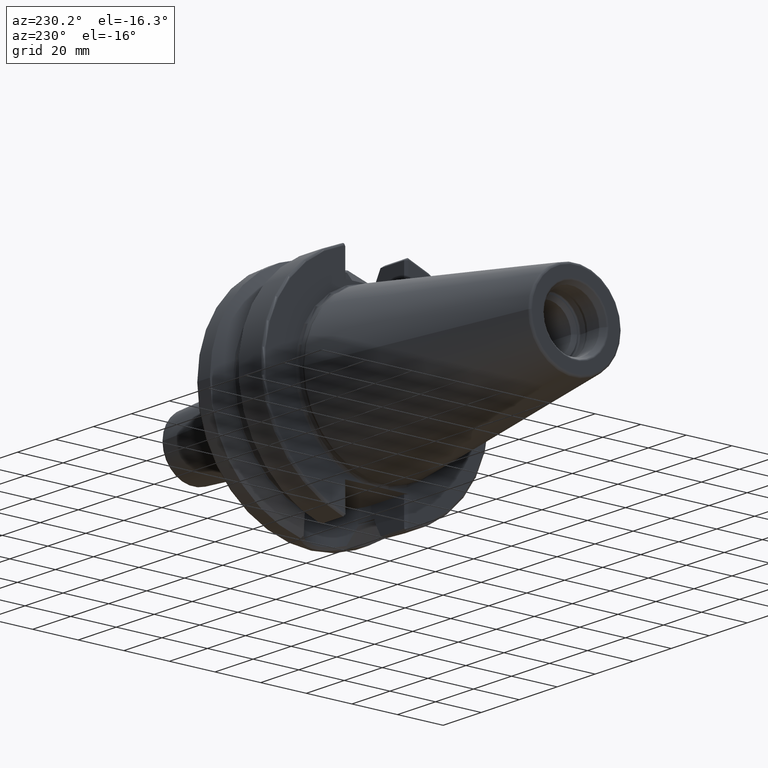
[diagram: clean part render]
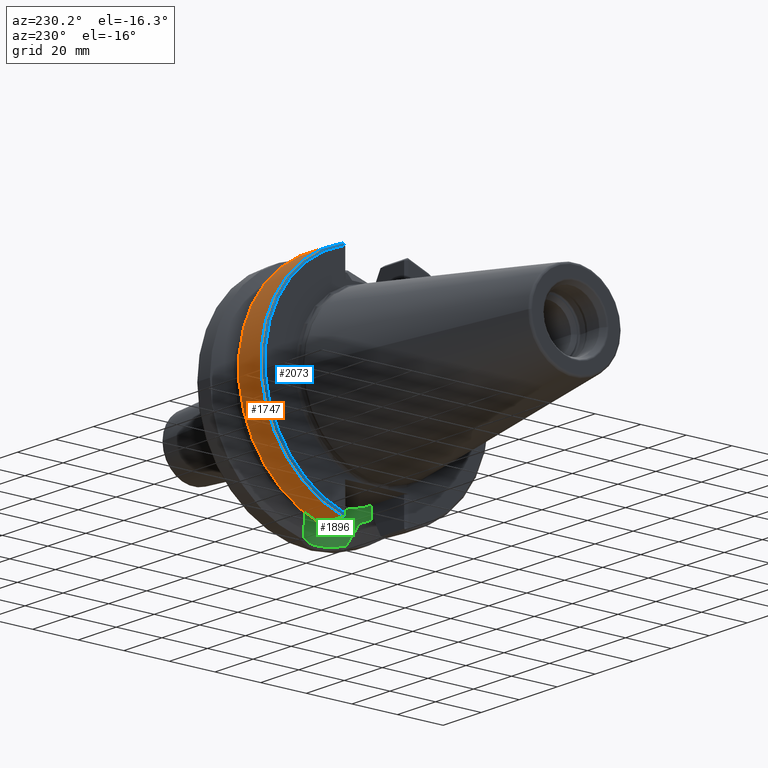
[diagram: same view with three faces highlighted in distinct colors, each labeled with its STEP entity id]
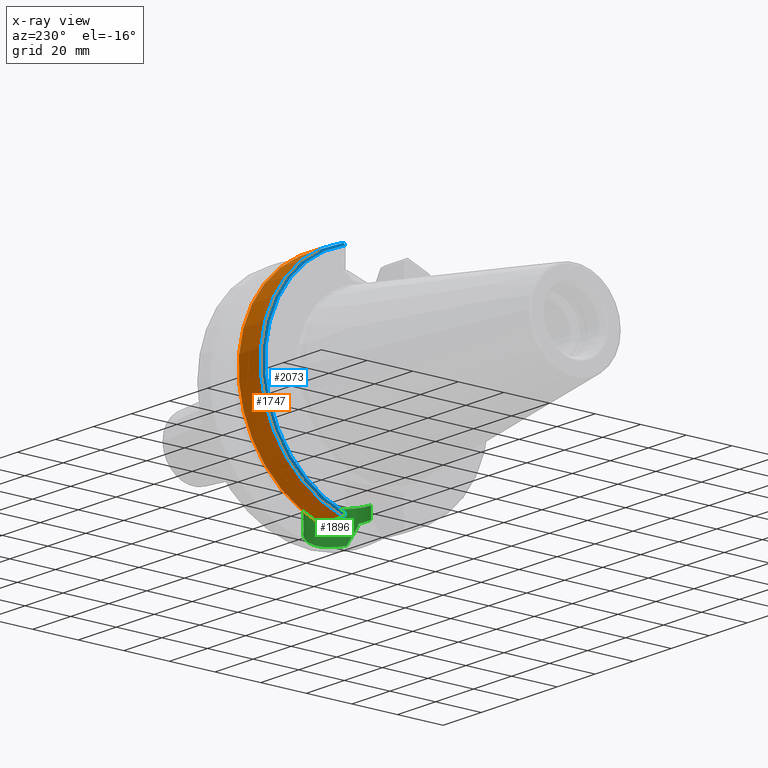
[diagram: x-ray of the same camera — body ghosted, the three highlighted faces saturated]
A machine part, auxiliary view with three faces highlighted in distinct colors.
The next image is the same camera in x-ray (body ghosted, the three faces saturated) — at least one of them is partly hidden behind the body in this view.
Their STEP definitions:

[orange] entity #1747 — the highlighted cylindrical surface (partial cylindrical patch) has radius 49.9875 mm, axis along (1, 0, 0).
#227=CARTESIAN_POINT('',(4.E0,0.E0,0.E0));
#228=DIRECTION('',(-1.E0,0.E0,0.E0));
#229=DIRECTION('',(0.E0,2.837968869610E-1,9.588844179312E-1));
#230=AXIS2_PLACEMENT_3D('',#227,#228,#229);
#232=DIRECTION('',(-1.E0,-7.302338022926E-8,-9.708531933347E-8));
#233=VECTOR('',#232,1.166933176412E1);
#234=CARTESIAN_POINT('',(1.566933176383E1,1.386327333875E1,-4.802665727057E1));
#235=LINE('',#234,#233);
#236=CARTESIAN_POINT('',(1.566933176383E1,0.E0,0.E0));
#237=DIRECTION('',(1.E0,0.E0,0.E0));
#238=DIRECTION('',(0.E0,2.773348004750E-1,-9.607733387462E-1));
#239=AXIS2_PLACEMENT_3D('',#236,#237,#238);
#241=DIRECTION('',(9.999999999989E-1,8.887251737038E-7,-1.189757232592E-6));
#242=VECTOR('',#241,1.166933177277E1);
#243=CARTESIAN_POINT('',(3.999999991073E0,1.418628651613E1,4.793224872501E1));
#244=LINE('',#243,#242);
#571=CARTESIAN_POINT('',(3.999999999701E0,1.386327248661E1,-4.802665840350E1));
#1342=CARTESIAN_POINT('',(1.566933176383E1,1.386327333875E1,-4.802665727057E1));
#1343=CARTESIAN_POINT('',(1.566933176383E1,1.418629688696E1,4.793223484134E1));
#1344=VERTEX_POINT('',#1342);
#1345=VERTEX_POINT('',#1343);
#1357=CARTESIAN_POINT('',(4.E0,1.418631682991E1,4.793222893890E1));
#1359=VERTEX_POINT('',#1357);
#1374=VERTEX_POINT('',#571);
#1733=CARTESIAN_POINT('',(-1.0879E2,0.E0,0.E0));
#1734=DIRECTION('',(1.E0,0.E0,0.E0));
#1735=DIRECTION('',(0.E0,-1.E0,0.E0));
#1736=AXIS2_PLACEMENT_3D('',#1733,#1734,#1735);
#1737=CYLINDRICAL_SURFACE('',#1736,4.99875E1);
#1739=ORIENTED_EDGE('',*,*,#1738,.T.);
#1741=ORIENTED_EDGE('',*,*,#1740,.F.);
#1742=ORIENTED_EDGE('',*,*,#1686,.T.);
#1744=ORIENTED_EDGE('',*,*,#1743,.F.);
#1745=EDGE_LOOP('',(#1739,#1741,#1742,#1744));
#1746=FACE_OUTER_BOUND('',#1745,.F.);
#1747=ADVANCED_FACE('',(#1746),#1737,.T.);
#231=CIRCLE('',#230,4.99875E1);
#240=CIRCLE('',#239,4.99875E1);
#1686=EDGE_CURVE('',#1344,#1345,#240,.T.);
#1738=EDGE_CURVE('',#1359,#1374,#231,.T.);
#1740=EDGE_CURVE('',#1344,#1374,#235,.T.);
#1743=EDGE_CURVE('',#1359,#1345,#244,.T.);

[blue] entity #2073 — the highlighted toroidal blend (fillet) surface has major radius 48.9875 mm and minor (blend) radius 1 mm.
#227=CARTESIAN_POINT('',(4.E0,0.E0,0.E0));
#228=DIRECTION('',(-1.E0,0.E0,0.E0));
#229=DIRECTION('',(0.E0,2.837968869610E-1,9.588844179312E-1));
#230=AXIS2_PLACEMENT_3D('',#227,#228,#229);
#571=CARTESIAN_POINT('',(3.999999999701E0,1.386327248661E1,-4.802665840350E1));
#572=CARTESIAN_POINT('',(3.940459880706E0,1.386328759388E1,-4.802665404266E1));
#573=CARTESIAN_POINT('',(3.818524379244E0,1.386408249541E1,-4.801536526032E1));
#574=CARTESIAN_POINT('',(3.632802361895E0,1.386813157488E1,-4.795971866684E1));
#575=CARTESIAN_POINT('',(3.454761225176E0,1.387449273833E1,-4.786347597167E1));
#576=CARTESIAN_POINT('',(3.294931333912E0,1.388240594639E1,-4.772857875800E1));
#577=CARTESIAN_POINT('',(3.162899754239E0,1.389052093324E1,-4.756045881447E1));
#578=CARTESIAN_POINT('',(3.066796699794E0,1.389728433203E1,-4.736907635249E1));
#579=CARTESIAN_POINT('',(3.011034865800E0,1.390161469890E1,-4.716733990672E1));
#580=CARTESIAN_POINT('',(2.999993172884E0,1.390258355640E1,-4.703686424349E1));
#581=CARTESIAN_POINT('',(2.999993172884E0,1.390249317248E1,-4.697335004621E1));
#583=CARTESIAN_POINT('',(4.E0,1.390251954399E1,4.697334463905E1));
#584=DIRECTION('',(0.E0,9.588842998530E-1,-2.837972859196E-1));
#585=DIRECTION('',(-1.E0,-1.200817223435E-12,-4.057199021190E-12));
#586=AXIS2_PLACEMENT_3D('',#583,#584,#585);
#588=CARTESIAN_POINT('',(3.E0,0.E0,0.E0));
#589=DIRECTION('',(-1.E0,0.E0,0.E0));
#590=DIRECTION('',(0.E0,2.837969049058E-1,9.588844126201E-1));
#591=AXIS2_PLACEMENT_3D('',#588,#589,#590);
#1356=CARTESIAN_POINT('',(3.E0,1.390251954398E1,4.697334463905E1));
#1357=CARTESIAN_POINT('',(4.E0,1.418631682991E1,4.793222893890E1));
#1358=VERTEX_POINT('',#1356);
#1359=VERTEX_POINT('',#1357);
#1370=CARTESIAN_POINT('',(2.999993172884E0,1.390249317248E1,-4.697335004621E1));
#1372=VERTEX_POINT('',#1370);
#1374=VERTEX_POINT('',#571);
#2060=CARTESIAN_POINT('',(4.E0,0.E0,0.E0));
#2061=DIRECTION('',(1.E0,0.E0,0.E0));
#2062=DIRECTION('',(0.E0,-1.E0,0.E0));
#2063=AXIS2_PLACEMENT_3D('',#2060,#2061,#2062);
#2064=TOROIDAL_SURFACE('',#2063,4.89875E1,1.E0);
#2066=ORIENTED_EDGE('',*,*,#2065,.F.);
#2067=ORIENTED_EDGE('',*,*,#1738,.F.);
#2069=ORIENTED_EDGE('',*,*,#2068,.F.);
#2070=ORIENTED_EDGE('',*,*,#1575,.T.);
#2071=EDGE_LOOP('',(#2066,#2067,#2069,#2070));
#2072=FACE_OUTER_BOUND('',#2071,.F.);
#2073=ADVANCED_FACE('',(#2072),#2064,.T.);
#231=CIRCLE('',#230,4.99875E1);
#582=B_SPLINE_CURVE_WITH_KNOTS('',3,(#571,#572,#573,#574,#575,#576,#577,#578,
#579,#580,#581),.UNSPECIFIED.,.F.,.F.,(4,1,1,1,1,1,1,1,4),(0.E0,1.25E-1,2.5E-1,
3.75E-1,5.E-1,6.25E-1,7.5E-1,8.75E-1,1.E0),.UNSPECIFIED.);
#587=CIRCLE('',#586,1.E0);
#592=CIRCLE('',#591,4.89875E1);
#1575=EDGE_CURVE('',#1358,#1372,#592,.T.);
#1738=EDGE_CURVE('',#1359,#1374,#231,.T.);
#2065=EDGE_CURVE('',#1374,#1372,#582,.T.);
#2068=EDGE_CURVE('',#1358,#1359,#587,.T.);

[green] entity #1896 — the highlighted cylindrical surface (partial cylindrical patch) has radius 12.9025 mm, axis along (0, 0, 1).
#182=DIRECTION('',(0.E0,0.E0,-1.E0));
#183=VECTOR('',#182,5.162930007E0);
#184=CARTESIAN_POINT('',(2.13475E1,1.29025E1,-3.52E1));
#185=LINE('',#184,#183);
#354=CARTESIAN_POINT('',(2.13475E1,1.29025E1,-4.036293000700E1));
#355=CARTESIAN_POINT('',(2.193211835169E1,1.29025E1,-4.036293000700E1));
#356=CARTESIAN_POINT('',(2.309259987866E1,1.282394305612E1,-4.038817378856E1));
#357=CARTESIAN_POINT('',(2.482251458198E1,1.246756636177E1,-4.050035379602E1));
#358=CARTESIAN_POINT('',(2.593767013310E1,1.207328392825E1,-4.061943244291E1));
#359=CARTESIAN_POINT('',(2.64875E1,1.183447955129E1,-4.068888937720E1));
#368=CARTESIAN_POINT('',(2.64875E1,-1.183447955129E1,-4.068888937720E1));
#369=CARTESIAN_POINT('',(2.593767013313E1,-1.207328392824E1,-4.061943244291E1));
#370=CARTESIAN_POINT('',(2.482251458205E1,-1.246756636174E1,-4.050035379603E1));
#371=CARTESIAN_POINT('',(2.309259987910E1,-1.282394305606E1,-4.038817378858E1));
#372=CARTESIAN_POINT('',(2.193211835188E1,-1.29025E1,-4.036293000700E1));
#373=CARTESIAN_POINT('',(2.13475E1,-1.29025E1,-4.036293000700E1));
#387=DIRECTION('',(2.297871418294E-14,0.E0,1.E0));
#388=VECTOR('',#387,4.638266941984E-1);
#389=CARTESIAN_POINT('',(2.67375E1,-1.172273032403E1,-4.144514217760E1));
#390=LINE('',#389,#388);
#391=CARTESIAN_POINT('',(3.016210431090E1,-9.422168385896E0,-4.808834737145E1));
#392=CARTESIAN_POINT('',(2.984184465633E1,-9.721776927818E0,-4.746439031418E1));
#393=CARTESIAN_POINT('',(2.916110296190E1,-1.029742776940E1,-4.613939859477E1));
#394=CARTESIAN_POINT('',(2.801848253867E1,-1.107377940524E1,-4.392131510326E1));
#395=CARTESIAN_POINT('',(2.717774587881E1,-1.152030945269E1,-4.229484073698E1));
#396=CARTESIAN_POINT('',(2.67375E1,-1.172273032403E1,-4.144514217760E1));
#398=CARTESIAN_POINT('',(3.016210431090E1,-9.422168385896E0,-4.808834737145E1));
#399=CARTESIAN_POINT('',(3.038830254385E1,-9.210558729678E0,-4.812867332843E1));
#400=CARTESIAN_POINT('',(3.103434169493E1,-8.560889379491E0,-4.824821252851E1));
#401=CARTESIAN_POINT('',(3.197970905132E1,-7.382445453295E0,-4.844242280592E1));
#402=CARTESIAN_POINT('',(3.289145171727E1,-5.852654825445E0,-4.864857494510E1));
#403=CARTESIAN_POINT('',(3.357771384758E1,-4.232712259927E0,-4.881504266262E1));
#404=CARTESIAN_POINT('',(3.403491650909E1,-2.550947084760E0,-4.893129473496E1));
#405=CARTESIAN_POINT('',(3.426160790023E1,-8.338904639241E-1,
-4.899052850444E1));
#406=CARTESIAN_POINT('',(3.425755148343E1,8.947935434790E-1,-4.898945929220E1));
#407=CARTESIAN_POINT('',(3.402263555299E1,2.611429124511E0,-4.892811575875E1));
#408=CARTESIAN_POINT('',(3.355723766629E1,4.291494858894E0,-4.880993653671E1));
#409=CARTESIAN_POINT('',(3.286290406160E1,5.908692243282E0,-4.864185941849E1));
#410=CARTESIAN_POINT('',(3.194332576898E1,7.434643787718E0,-4.843455074383E1));
#411=CARTESIAN_POINT('',(3.100512167181E1,8.592346283708E0,-4.824257317048E1));
#412=CARTESIAN_POINT('',(3.037263944382E1,9.225225040673E0,-4.812587812569E1));
#413=CARTESIAN_POINT('',(3.016210355788E1,9.422169090361E0,-4.808834590435E1));
#415=CARTESIAN_POINT('',(2.67375E1,1.172273032403E1,-4.144514217760E1));
#416=CARTESIAN_POINT('',(2.717755273188E1,1.152039825981E1,-4.229446795287E1));
#417=CARTESIAN_POINT('',(2.801804260532E1,1.107404406164E1,-4.392046244152E1));
#418=CARTESIAN_POINT('',(2.916093120674E1,1.029757215552E1,-4.613906421021E1));
#419=CARTESIAN_POINT('',(2.984177307163E1,9.721843848552E0,-4.746425084782E1));
#420=CARTESIAN_POINT('',(3.016210355788E1,9.422169090361E0,-4.808834590435E1));
#422=DIRECTION('',(0.E0,1.148935709147E-14,1.E0));
#423=VECTOR('',#422,4.638266941984E-1);
#424=CARTESIAN_POINT('',(2.67375E1,1.172273032403E1,-4.144514217760E1));
#425=LINE('',#424,#423);
#426=CARTESIAN_POINT('',(2.64875E1,1.183447955129E1,-4.068888937720E1));
#427=CARTESIAN_POINT('',(2.651408131936E1,1.182293464297E1,-4.069224724672E1));
#428=CARTESIAN_POINT('',(2.656490253593E1,1.180065791496E1,-4.070695762482E1));
#429=CARTESIAN_POINT('',(2.663891469758E1,1.176763685688E1,-4.075541966358E1));
#430=CARTESIAN_POINT('',(2.669626231199E1,1.174163763665E1,-4.082489375053E1));
#431=CARTESIAN_POINT('',(2.672998645392E1,1.172618901674E1,-4.090260058967E1));
#432=CARTESIAN_POINT('',(2.67375E1,1.172273032403E1,-4.095473554554E1));
#433=CARTESIAN_POINT('',(2.67375E1,1.172273032403E1,-4.098131548340E1));
#435=DIRECTION('',(0.E0,0.E0,-1.E0));
#436=VECTOR('',#435,5.162930007E0);
#437=CARTESIAN_POINT('',(2.13475E1,-1.29025E1,-3.52E1));
#438=LINE('',#437,#436);
#439=CARTESIAN_POINT('',(2.67375E1,-1.172273032403E1,-4.098131548340E1));
#440=CARTESIAN_POINT('',(2.67375E1,-1.172273032403E1,-4.095473554554E1));
#441=CARTESIAN_POINT('',(2.672998645392E1,-1.172618901674E1,-4.090260058967E1));
#442=CARTESIAN_POINT('',(2.669626231199E1,-1.174163763665E1,-4.082489375053E1));
#443=CARTESIAN_POINT('',(2.663891469758E1,-1.176763685688E1,-4.075541966358E1));
#444=CARTESIAN_POINT('',(2.656490253593E1,-1.180065791496E1,-4.070695762482E1));
#445=CARTESIAN_POINT('',(2.651408131936E1,-1.182293464297E1,-4.069224724672E1));
#446=CARTESIAN_POINT('',(2.64875E1,-1.183447955129E1,-4.068888937720E1));
#753=CARTESIAN_POINT('',(2.13475E1,0.E0,-3.52E1));
#754=DIRECTION('',(0.E0,0.E0,1.E0));
#755=DIRECTION('',(0.E0,-1.E0,0.E0));
#756=AXIS2_PLACEMENT_3D('',#753,#754,#755);
#1193=CARTESIAN_POINT('',(2.67375E1,-1.172273032403E1,-4.098131548340E1));
#1195=VERTEX_POINT('',#1193);
#1196=CARTESIAN_POINT('',(2.64875E1,-1.183447955129E1,-4.068888937720E1));
#1198=VERTEX_POINT('',#1196);
#1201=CARTESIAN_POINT('',(2.64875E1,1.183447955129E1,-4.068888937720E1));
#1203=VERTEX_POINT('',#1201);
#1204=CARTESIAN_POINT('',(2.67375E1,1.172273032403E1,-4.098131548340E1));
#1206=VERTEX_POINT('',#1204);
#1209=CARTESIAN_POINT('',(2.67375E1,1.172273032403E1,-4.144514217760E1));
#1211=VERTEX_POINT('',#1209);
#1212=CARTESIAN_POINT('',(2.67375E1,-1.172273032403E1,-4.144514217760E1));
#1214=VERTEX_POINT('',#1212);
#1314=CARTESIAN_POINT('',(2.13475E1,-1.29025E1,-3.52E1));
#1315=CARTESIAN_POINT('',(2.13475E1,1.29025E1,-3.52E1));
#1316=VERTEX_POINT('',#1314);
#1317=VERTEX_POINT('',#1315);
#1330=CARTESIAN_POINT('',(2.13475E1,1.29025E1,-4.036293000700E1));
#1331=VERTEX_POINT('',#1330);
#1333=CARTESIAN_POINT('',(2.13475E1,-1.29025E1,-4.036293000700E1));
#1334=VERTEX_POINT('',#1333);
#1336=VERTEX_POINT('',#391);
#1337=VERTEX_POINT('',#420);
#1869=CARTESIAN_POINT('',(2.13475E1,0.E0,-3.52E1));
#1870=DIRECTION('',(0.E0,0.E0,1.E0));
#1871=DIRECTION('',(1.E0,0.E0,0.E0));
#1872=AXIS2_PLACEMENT_3D('',#1869,#1870,#1871);
#1873=CYLINDRICAL_SURFACE('',#1872,1.29025E1);
#1875=ORIENTED_EDGE('',*,*,#1874,.F.);
#1877=ORIENTED_EDGE('',*,*,#1876,.F.);
#1879=ORIENTED_EDGE('',*,*,#1878,.T.);
#1881=ORIENTED_EDGE('',*,*,#1880,.F.);
#1883=ORIENTED_EDGE('',*,*,#1882,.T.);
#1885=ORIENTED_EDGE('',*,*,#1884,.F.);
#1886=ORIENTED_EDGE('',*,*,#1840,.F.);
#1887=ORIENTED_EDGE('',*,*,#1641,.F.);
#1889=ORIENTED_EDGE('',*,*,#1888,.F.);
#1890=ORIENTED_EDGE('',*,*,#1792,.T.);
#1891=ORIENTED_EDGE('',*,*,#1856,.F.);
#1893=ORIENTED_EDGE('',*,*,#1892,.F.);
#1894=EDGE_LOOP('',(#1875,#1877,#1879,#1881,#1883,#1885,#1886,#1887,#1889,#1890,
#1891,#1893));
#1895=FACE_OUTER_BOUND('',#1894,.F.);
#1896=ADVANCED_FACE('',(#1895),#1873,.F.);
#360=B_SPLINE_CURVE_WITH_KNOTS('',3,(#354,#355,#356,#357,#358,#359),
.UNSPECIFIED.,.F.,.F.,(4,1,1,4),(0.E0,3.333333333333E-1,6.666666666667E-1,1.E0),
.UNSPECIFIED.);
#374=B_SPLINE_CURVE_WITH_KNOTS('',3,(#368,#369,#370,#371,#372,#373),
.UNSPECIFIED.,.F.,.F.,(4,1,1,4),(0.E0,3.333333333333E-1,6.666666666667E-1,1.E0),
.UNSPECIFIED.);
#397=B_SPLINE_CURVE_WITH_KNOTS('',3,(#391,#392,#393,#394,#395,#396),
.UNSPECIFIED.,.F.,.F.,(4,1,1,4),(0.E0,3.333333333333E-1,6.666666666667E-1,1.E0),
.UNSPECIFIED.);
#414=B_SPLINE_CURVE_WITH_KNOTS('',3,(#398,#399,#400,#401,#402,#403,#404,#405,
#406,#407,#408,#409,#410,#411,#412,#413),.UNSPECIFIED.,.F.,.F.,(4,1,1,1,1,1,1,1,
1,1,1,1,1,4),(0.E0,4.259851317235E-2,1.260313520961E-1,2.094641910198E-1,
2.928970299435E-1,3.763298688672E-1,4.597627077909E-1,5.431955467147E-1,
6.266283856384E-1,7.100612245621E-1,7.934940634858E-1,8.769269024095E-1,
9.603597413332E-1,1.E0),.UNSPECIFIED.);
#421=B_SPLINE_CURVE_WITH_KNOTS('',3,(#415,#416,#417,#418,#419,#420),
.UNSPECIFIED.,.F.,.F.,(4,1,1,4),(0.E0,3.333333333333E-1,6.666666666667E-1,1.E0),
.UNSPECIFIED.);
#434=B_SPLINE_CURVE_WITH_KNOTS('',3,(#426,#427,#428,#429,#430,#431,#432,#433),
.UNSPECIFIED.,.F.,.F.,(4,1,1,1,1,4),(0.E0,2.E-1,4.E-1,6.E-1,8.E-1,1.E0),
.UNSPECIFIED.);
#447=B_SPLINE_CURVE_WITH_KNOTS('',3,(#439,#440,#441,#442,#443,#444,#445,#446),
.UNSPECIFIED.,.F.,.F.,(4,1,1,1,1,4),(0.E0,2.E-1,4.E-1,6.E-1,8.E-1,1.E0),
.UNSPECIFIED.);
#757=CIRCLE('',#756,1.29025E1);
#1641=EDGE_CURVE('',#1317,#1331,#185,.T.);
#1792=EDGE_CURVE('',#1316,#1334,#438,.T.);
#1840=EDGE_CURVE('',#1331,#1203,#360,.T.);
#1856=EDGE_CURVE('',#1198,#1334,#374,.T.);
#1874=EDGE_CURVE('',#1214,#1195,#390,.T.);
#1876=EDGE_CURVE('',#1336,#1214,#397,.T.);
#1878=EDGE_CURVE('',#1336,#1337,#414,.T.);
#1880=EDGE_CURVE('',#1211,#1337,#421,.T.);
#1882=EDGE_CURVE('',#1211,#1206,#425,.T.);
#1884=EDGE_CURVE('',#1203,#1206,#434,.T.);
#1888=EDGE_CURVE('',#1316,#1317,#757,.T.);
#1892=EDGE_CURVE('',#1195,#1198,#447,.T.);